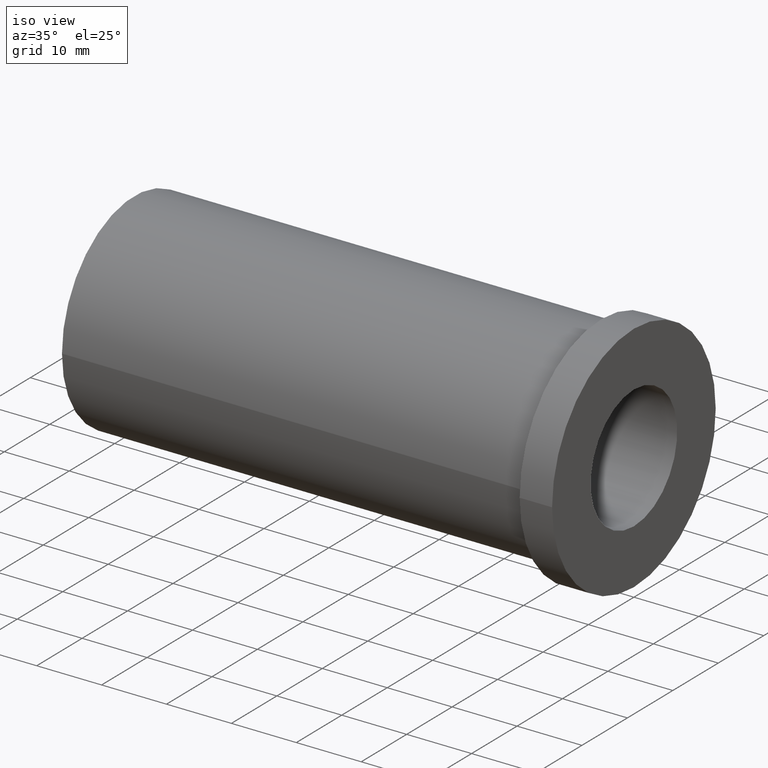
[diagram: clean part render]
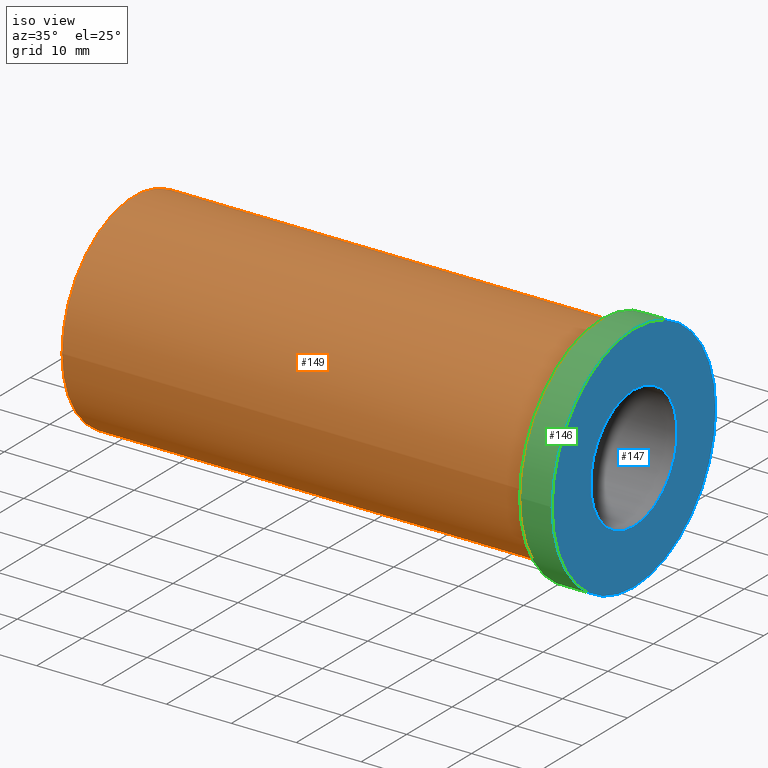
[diagram: same view with three faces highlighted in distinct colors, each labeled with its STEP entity id]
A machine part, iso view with three faces highlighted in distinct colors.
Their STEP definitions:

[orange] entity #149 — the highlighted cylindrical surface (bore or boss wall) has radius 15.875 mm, axis along (1, 0, 0).
#31=FACE_OUTER_BOUND('',#43,.T.);
#43=EDGE_LOOP('',(#130,#131,#132,#133));
#52=LINE('',#284,#59);
#59=VECTOR('',#243,15.8750000000001);
#69=CIRCLE('',#191,15.875);
#70=CIRCLE('',#193,15.8750000000001);
#80=VERTEX_POINT('',#279);
#81=VERTEX_POINT('',#282);
#97=EDGE_CURVE('',#80,#80,#69,.T.);
#98=EDGE_CURVE('',#81,#81,#70,.T.);
#99=EDGE_CURVE('',#81,#80,#52,.T.);
#130=ORIENTED_EDGE('',*,*,#98,.F.);
#131=ORIENTED_EDGE('',*,*,#99,.T.);
#132=ORIENTED_EDGE('',*,*,#97,.T.);
#133=ORIENTED_EDGE('',*,*,#99,.F.);
#140=CYLINDRICAL_SURFACE('',#192,15.8750000000001);
#149=ADVANCED_FACE('',(#31),#140,.T.);
#191=AXIS2_PLACEMENT_3D('',#280,#237,#238);
#192=AXIS2_PLACEMENT_3D('',#281,#239,#240);
#193=AXIS2_PLACEMENT_3D('',#283,#241,#242);
#237=DIRECTION('center_axis',(1.,0.,0.));
#238=DIRECTION('ref_axis',(0.,0.,-1.));
#239=DIRECTION('center_axis',(1.,0.,0.));
#240=DIRECTION('ref_axis',(0.,1.,0.));
#241=DIRECTION('center_axis',(1.,0.,0.));
#242=DIRECTION('ref_axis',(0.,0.,-1.));
#243=DIRECTION('',(-1.,0.,0.));
#279=CARTESIAN_POINT('',(-77.,-15.8750000000001,-1.94412679364643E-15));
#280=CARTESIAN_POINT('Origin',(-77.,0.,0.));
#281=CARTESIAN_POINT('Origin',(-41.,0.,0.));
#282=CARTESIAN_POINT('',(-5.,-15.8750000000001,-1.94412679364643E-15));
#283=CARTESIAN_POINT('Origin',(-5.,0.,0.));
#284=CARTESIAN_POINT('',(-41.,-15.8750000000001,-1.94412679364643E-15));

[blue] entity #147 — the highlighted planar face has unit normal (1, 0, 0).
#15=FACE_BOUND('',#40,.T.);
#18=PLANE('',#189);
#29=FACE_OUTER_BOUND('',#39,.T.);
#39=EDGE_LOOP('',(#126));
#40=EDGE_LOOP('',(#127));
#60=CIRCLE('',#175,9.525);
#67=CIRCLE('',#187,18.);
#71=VERTEX_POINT('',#248);
#78=VERTEX_POINT('',#272);
#82=EDGE_CURVE('',#71,#71,#60,.T.);
#94=EDGE_CURVE('',#78,#78,#67,.T.);
#126=ORIENTED_EDGE('',*,*,#94,.T.);
#127=ORIENTED_EDGE('',*,*,#82,.T.);
#147=ADVANCED_FACE('',(#29,#15),#18,.T.);
#175=AXIS2_PLACEMENT_3D('',#249,#199,#200);
#187=AXIS2_PLACEMENT_3D('',#273,#228,#229);
#189=AXIS2_PLACEMENT_3D('',#277,#233,#234);
#199=DIRECTION('center_axis',(-1.,0.,0.));
#200=DIRECTION('ref_axis',(0.,0.,-1.));
#228=DIRECTION('center_axis',(1.,0.,0.));
#229=DIRECTION('ref_axis',(0.,0.,-1.));
#233=DIRECTION('center_axis',(1.,0.,0.));
#234=DIRECTION('ref_axis',(0.,0.,-1.));
#248=CARTESIAN_POINT('',(0.,-1.16647607618785E-15,9.525));
#249=CARTESIAN_POINT('Origin',(0.,0.,0.));
#272=CARTESIAN_POINT('',(5.55111512312578E-15,-18.,-2.20436423846524E-15));
#273=CARTESIAN_POINT('Origin',(5.55111512312578E-15,0.,0.));
#277=CARTESIAN_POINT('Origin',(1.24504562061398E-31,2.26081779560032E-14,
0.));

[green] entity #146 — the highlighted cylindrical surface (bore or boss wall) has radius 18 mm, axis along (1, 0, 0).
#28=FACE_OUTER_BOUND('',#38,.T.);
#38=EDGE_LOOP('',(#122,#123,#124,#125));
#51=LINE('',#275,#58);
#58=VECTOR('',#230,18.);
#67=CIRCLE('',#187,18.);
#68=CIRCLE('',#188,18.);
#78=VERTEX_POINT('',#272);
#79=VERTEX_POINT('',#274);
#94=EDGE_CURVE('',#78,#78,#67,.T.);
#95=EDGE_CURVE('',#78,#79,#51,.T.);
#96=EDGE_CURVE('',#79,#79,#68,.T.);
#122=ORIENTED_EDGE('',*,*,#94,.F.);
#123=ORIENTED_EDGE('',*,*,#95,.T.);
#124=ORIENTED_EDGE('',*,*,#96,.T.);
#125=ORIENTED_EDGE('',*,*,#95,.F.);
#139=CYLINDRICAL_SURFACE('',#186,18.);
#146=ADVANCED_FACE('',(#28),#139,.T.);
#186=AXIS2_PLACEMENT_3D('',#271,#226,#227);
#187=AXIS2_PLACEMENT_3D('',#273,#228,#229);
#188=AXIS2_PLACEMENT_3D('',#276,#231,#232);
#226=DIRECTION('center_axis',(1.,0.,0.));
#227=DIRECTION('ref_axis',(0.,1.,0.));
#228=DIRECTION('center_axis',(1.,0.,0.));
#229=DIRECTION('ref_axis',(0.,0.,-1.));
#230=DIRECTION('',(-1.,0.,0.));
#231=DIRECTION('center_axis',(1.,0.,0.));
#232=DIRECTION('ref_axis',(0.,0.,-1.));
#271=CARTESIAN_POINT('Origin',(-2.49999999999999,0.,0.));
#272=CARTESIAN_POINT('',(5.55111512312578E-15,-18.,-2.20436423846524E-15));
#273=CARTESIAN_POINT('Origin',(5.55111512312578E-15,0.,0.));
#274=CARTESIAN_POINT('',(-4.99999999999999,-18.,-2.20436423846524E-15));
#275=CARTESIAN_POINT('',(-2.49999999999999,-18.,-2.20436423846524E-15));
#276=CARTESIAN_POINT('Origin',(-4.99999999999999,0.,0.));